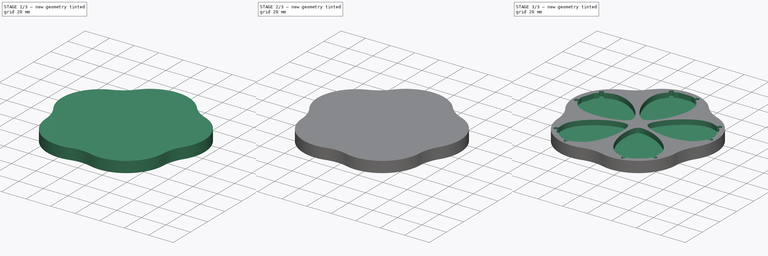
[diagram: build sequence overview — one tinted view per stage of 3, left to right]
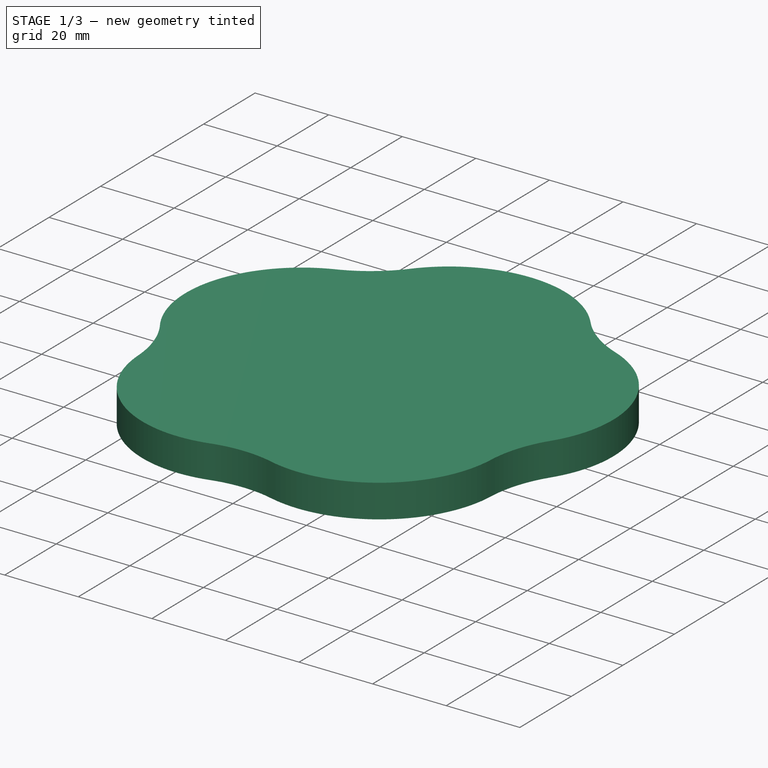
[diagram: stage 1 of 3 — iso view after this stage's code; geometry added in this stage tinted green]
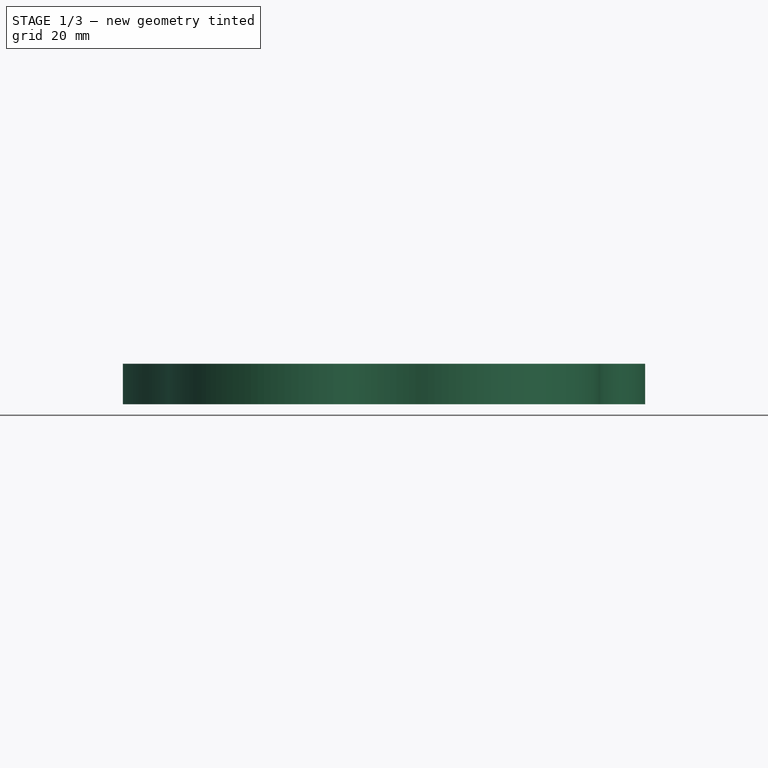
[diagram: stage 1 of 3 — front view after this stage's code; geometry added in this stage tinted green]
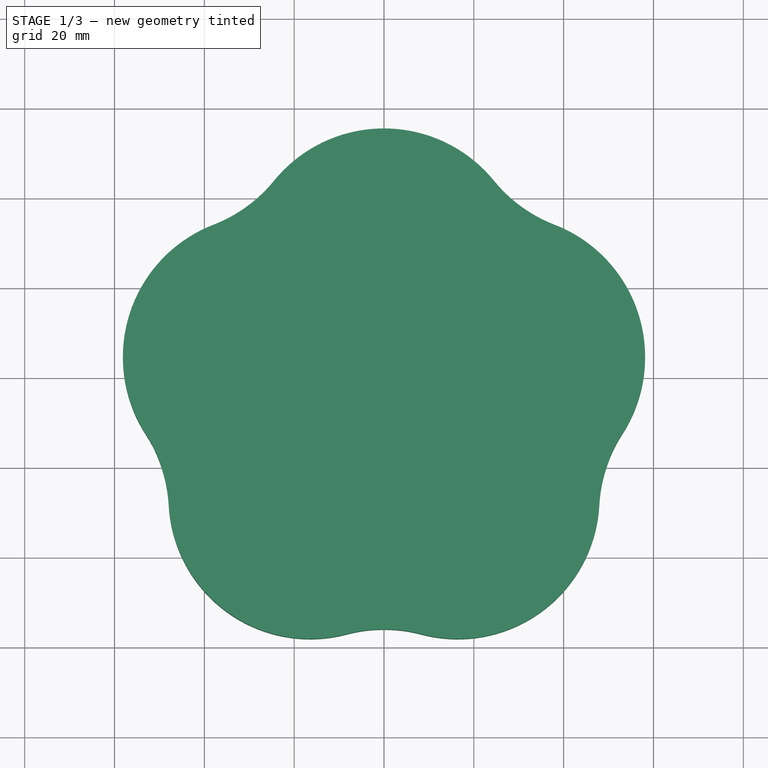
[diagram: stage 1 of 3 — top view after this stage's code; geometry added in this stage tinted green]
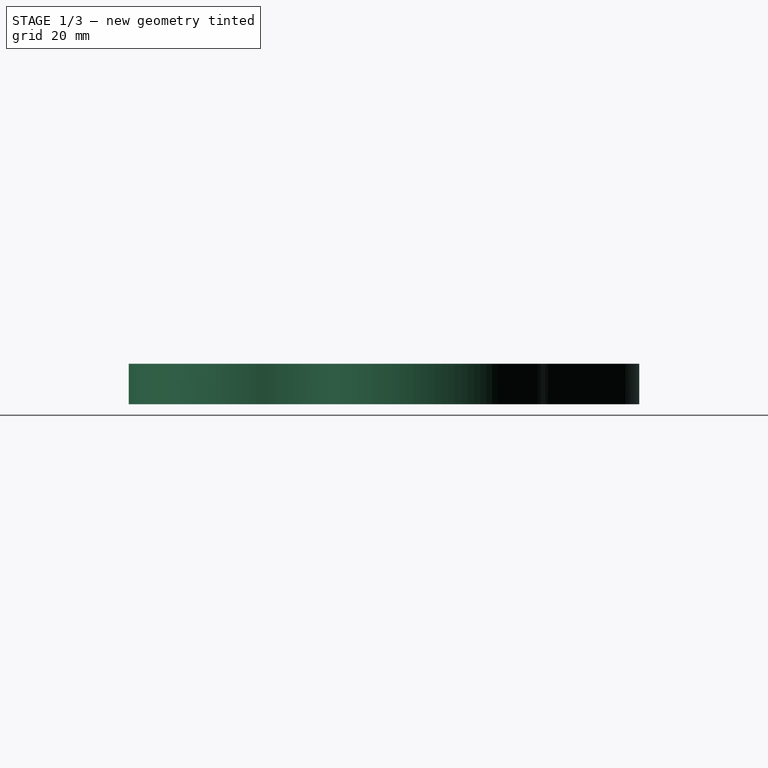
[diagram: stage 1 of 3 — right view after this stage's code; geometry added in this stage tinted green]
FCSTD DOCUMENT  (FreeCAD 0.19R24267 (Git))
Label: chalk ink trays
License: All rights reserved
LicenseURL: http://en.wikipedia.org/wiki/All_rights_reserved
objects: Sketcher::SketchObject×3, PartDesign::PolarPattern×3, PartDesign::Pocket×2, Image::ImagePlane×1, PartDesign::Pad×1, PartDesign::Line×1, PartDesign::Body×1
note: 14 computed .brp shape members not serialized (recipe doc carries the construction recipe); baked Part::Feature solids carry a one-line shape summary decoded from their .brp

FEATURE [Image::ImagePlane] ImagePlane
  Placement = pos=(-6.5,25.7,-0.1) rot=(0,0,1;-0.012217rad)
  XSize = 64.2456
  YSize = 85.6312
FEATURE [Sketcher::SketchObject] Sketch
  AttachmentOffset = pos=(0,-4,0) rot=(0,0,1;0rad)
  FullyConstrained = false
  MapMode = 5
  Placement = pos=(0,-4,0) rot=(0,0,1;0rad)
  Support = -> [XY_Plane001]
  expr: Constraints[2] = 360 / 5
  sketch-geometry (8):
    g0: LineSegment StartX=0 StartY=0 StartZ=0 EndX=-43.1866 EndY=59.4412 EndZ=0
    g1: LineSegment StartX=0 StartY=0 StartZ=0 EndX=43.1866 EndY=59.4412 EndZ=0
    g2: ArcOfCircle CenterX=0 CenterY=27.939 CenterZ=0 NormalX=0 NormalY=0 NormalZ=1 AngleXU=0 Radius=31.5692 StartAngle=0.681581 EndAngle=1.5708
    g3: ArcOfCircle CenterX=49.0319 CenterY=67.7176 CenterZ=0 NormalX=0 NormalY=0 NormalZ=1 AngleXU=0 Radius=31.5692 StartAngle=3.82317 EndAngle=4.08837
    g4: ArcOfCircle CenterX=0 CenterY=27.939 CenterZ=0 NormalX=0 NormalY=0 NormalZ=1 AngleXU=0 Radius=31.5692 StartAngle=1.5708 EndAngle=2.46001
    g5: ArcOfCircle CenterX=-49.0319 CenterY=67.7176 CenterZ=0 NormalX=0 NormalY=0 NormalZ=1 AngleXU=0 Radius=31.5692 StartAngle=5.33641 EndAngle=5.6016
    g6: LineSegment StartX=-30.586 StartY=42.098 StartZ=0 EndX=0 EndY=0 EndZ=0
    g7: LineSegment StartX=0 StartY=0 StartZ=0 EndX=30.586 EndY=42.098 EndZ=0
  constraints (18):
    c: Coincident(g0,g-1)
    c: Coincident(g1,g-1)
    c: Angle(g1,g0) = 1.25664
    c: Symmetric(g1,g0,g-2)
    c: Equal(g2,g3)
    c: PointOnObject(g2,g-2)
    c: Coincident(g5,g4)
    c: Symmetric(g5,g3,g-2)
    c: Symmetric(g4,g2,g-2)
    c: Equal(g5,g3)
    c: Coincident(g6,g5)
    c: Coincident(g6,g-1)
    c: Coincident(g7,g6)
    c: Coincident(g7,g3)
    c: PointOnObject(g2,g-2)
    c: Tangent(g4,g2) = -1.5708
    c: Tangent(g2,g3) = 1.5708
    c: PointOnObject(g3,g1)
FEATURE [PartDesign::Pad] Pad
  Direction = (1,1,1)
  Length = 9
  Length2 = 100
  Profile = -> Sketch
  Type = 0
FEATURE [PartDesign::PolarPattern] PolarPattern
  Angle = 360
  Axis = -> Sketch [N_Axis]
  BaseFeature = -> Pad
  Occurrences = 5
  Originals = -> [Pad]
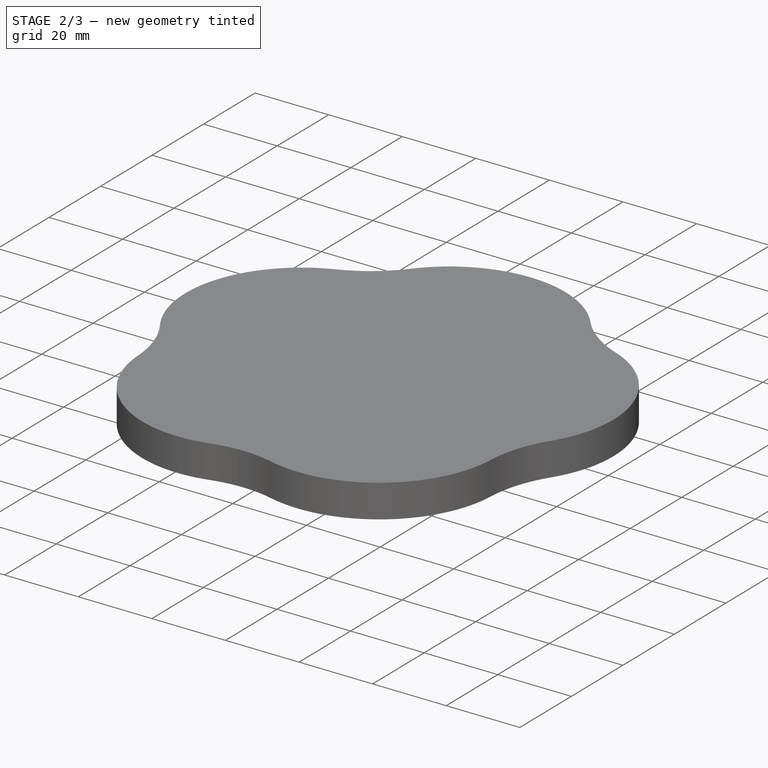
[diagram: stage 2 of 3 — iso view after this stage's code; geometry added in this stage tinted green]
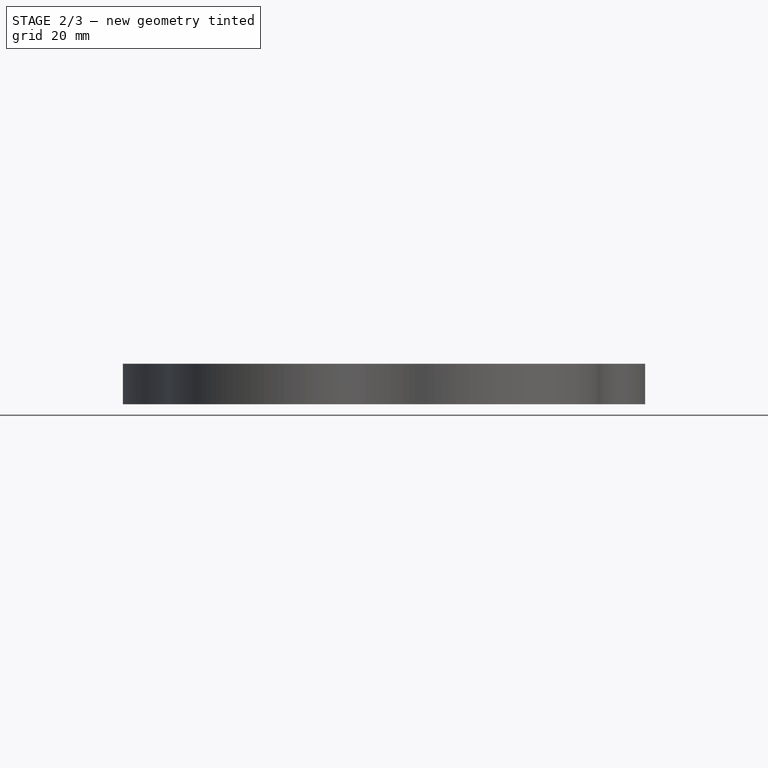
[diagram: stage 2 of 3 — front view after this stage's code; geometry added in this stage tinted green]
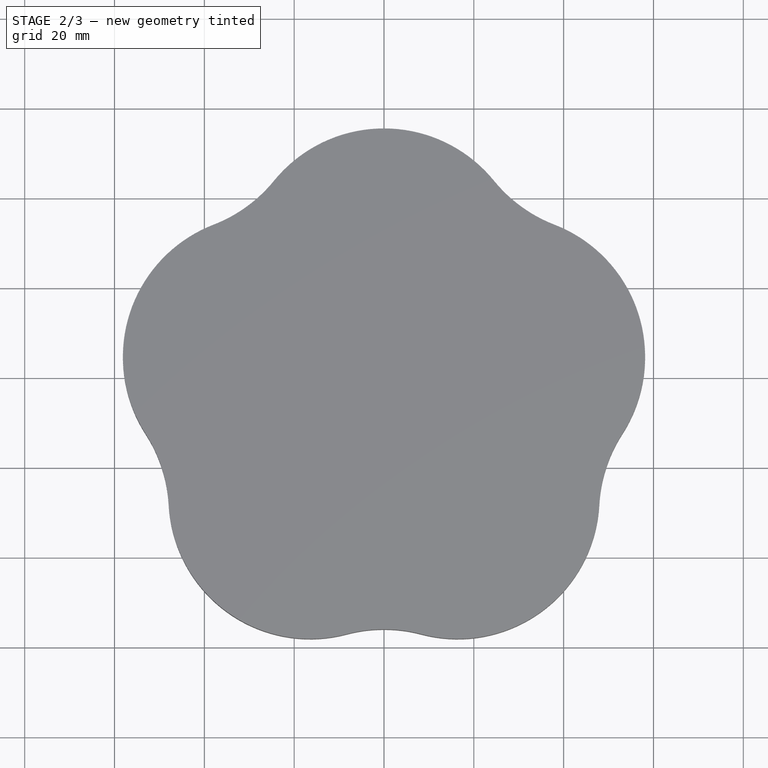
[diagram: stage 2 of 3 — top view after this stage's code; geometry added in this stage tinted green]
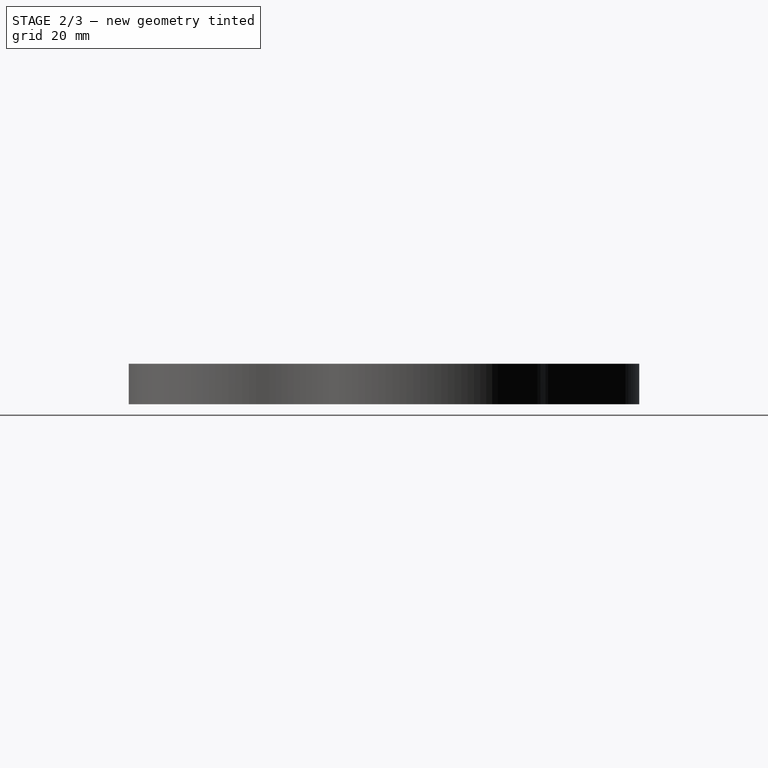
[diagram: stage 2 of 3 — right view after this stage's code; geometry added in this stage tinted green]
FEATURE [Sketcher::SketchObject] Sketch003
  AttachmentOffset = pos=(0,3,0) rot=(0,0,1;0rad)
  FullyConstrained = false
  MapMode = 5
  Placement = pos=(0,3,0) rot=(0,0,1;0rad)
  Support = -> [XY_Plane001]
  sketch-geometry (25):
    g0: LineSegment StartX=-5 StartY=48.5 StartZ=0 EndX=5 EndY=48.5 EndZ=0
    g1: ArcOfCircle CenterX=0 CenterY=33.3996 CenterZ=0 NormalX=0 NormalY=0 NormalZ=1 AngleXU=0 Radius=15.9067 StartAngle=0.55291 EndAngle=1.25104
    g2: ArcOfCircle CenterX=0 CenterY=33.3996 CenterZ=0 NormalX=0 NormalY=0 NormalZ=1 AngleXU=0 Radius=15.9067 StartAngle=1.89055 EndAngle=2.58868
    g3-g7: Circle x5 (B-spline internal-alignment scaffolding for g8; pole/knot coordinates omitted)
    g8: BSplineCurve PolesCount=5 KnotsCount=3 Degree=3 IsPeriodic=0
    g9: GeomPoint X=0 Y=0 Z=0
    g10: GeomPoint X=13.4646 Y=15.4794 Z=0
    g11: GeomPoint X=13.5366 Y=41.7532 Z=0
    g12-g16: Circle x5 (B-spline internal-alignment scaffolding for g17; pole/knot coordinates omitted)
    g17: BSplineCurve PolesCount=5 KnotsCount=3 Degree=3 IsPeriodic=0
    g18: GeomPoint X=0 Y=0 Z=0
    g19: ArcOfCircle CenterX=0 CenterY=33.3996 CenterZ=0 NormalX=0 NormalY=0 NormalZ=1 AngleXU=0 Radius=15.9067 StartAngle=2.31798 EndAngle=2.58868
    g20: ArcOfCircle CenterX=-0.0271516 CenterY=33.4576 CenterZ=0 NormalX=0 NormalY=0 NormalZ=1 AngleXU=0 Radius=15.8431 StartAngle=1.89008 EndAngle=2.12674
    g21: ArcOfCircle CenterX=0 CenterY=33.3996 CenterZ=0 NormalX=0 NormalY=0 NormalZ=1 AngleXU=0 Radius=15.9067 StartAngle=1.01533 EndAngle=1.25104
    g22: ArcOfCircle CenterX=-0.181917 CenterY=33.25 CenterZ=0 NormalX=0 NormalY=0 NormalZ=1 AngleXU=0 Radius=16.1401 StartAngle=0.554879 EndAngle=0.821642
    g23: ArcOfCircle CenterX=0 CenterY=33.3996 CenterZ=0 NormalX=0 NormalY=0 NormalZ=1 AngleXU=0 Radius=15.9067 StartAngle=0.823611 EndAngle=1.01533
    g24: ArcOfCircle CenterX=0 CenterY=33.3996 CenterZ=0 NormalX=0 NormalY=0 NormalZ=1 AngleXU=0 Radius=15.9067 StartAngle=2.12627 EndAngle=2.31798
  constraints (42):
    c: Symmetric(g0,g0,g-2)
    c: Coincident(g1,g0)
    c: DistanceX(g0) = -5
    c: PointOnObject(g1,g-2)
    c: Angle(g1) = 0.698132
    c: Coincident(g2,g1)
    c: Coincident(g2,g0)
    c: Angle(g2) = 0.698132
    c: Coincident(g8,g-1)
    c: Weight(g3) = 1
    c: Equal(g3, g4-g7) x4
    c: Coincident(g8,g1)
    c: InternalAlignment(g3-g7 -> g8) x5
    c: InternalAlignment(g9,g8)
    c: InternalAlignment(g10,g8)
    c: InternalAlignment(g11,g8)
    c: Horizontal(g4,g8)
    c: Coincident(g17,g8)
    c: Weight(g12) = 1
    c: Equal(g12, g13-g16) x4
    c: Coincident(g17,g2)
    c: InternalAlignment(g12-g16 -> g17) x5
    c: InternalAlignment(g18,g17)
    c: DistanceX(g4) = 3.33498
    c: Symmetric(g6,g15,g-2)
    c: Symmetric(g13,g4,g-2)
    c: Coincident(g23,g21)
    c: Coincident(g23,g21)
    c: Coincident(g23,g22)
    c: Vertical(g21,g19)
    c: Symmetric(g19,g22,g-2)
    c: Symmetric(g20,g21,g-2)
    c: Angle(g19) = 0.270701
    c: Coincident(g24,g19)
    c: Coincident(g24,g20)
    c: Coincident(g24,g19)
    c: Angle(g20) = 0.236667
    c: Coincident(g8,g22)
    c: Coincident(g0,g21)
    c: DistanceY(g0) = 48.5
    c: Coincident(g0,g20)
    c: Coincident(g19,g17)
FEATURE [PartDesign::Pocket] Pocket
  BaseFeature = -> PolarPattern
  Length = 4
  Length2 = 100
  Profile = -> Sketch003
  Reversed = true
  Type = 0
FEATURE [PartDesign::Line] DatumLine
  AttacherType = Attacher::AttachEngineLine
  Length = 20
  Placement = pos=(0,-4,0) rot=(0,0,1;0rad)
  ResizeMode = 0
FEATURE [PartDesign::PolarPattern] PolarPattern001
  Angle = 360
  Axis = -> DatumLine
  BaseFeature = -> Pocket
  Occurrences = 5
  Originals = -> [Pocket]
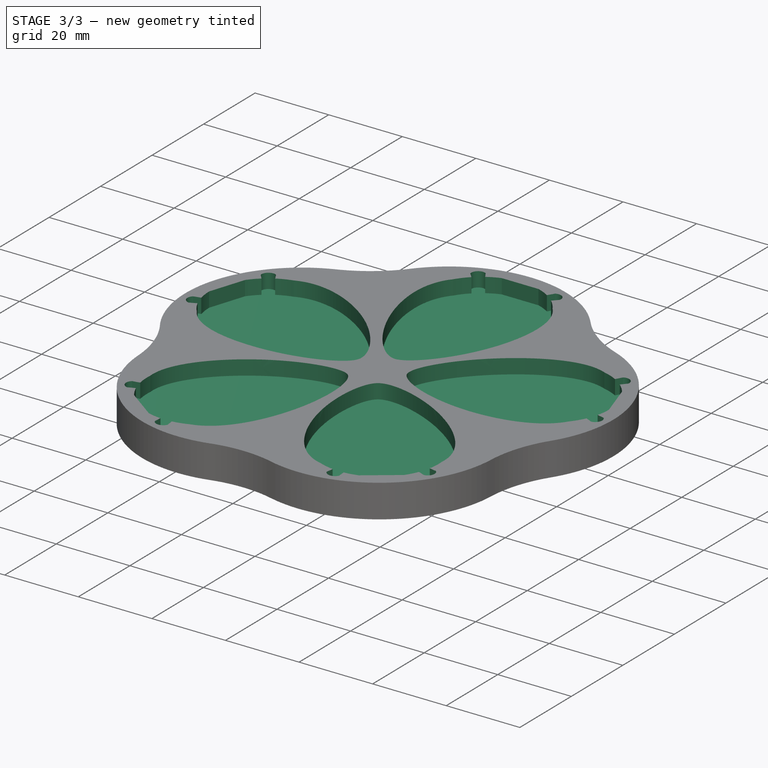
[diagram: stage 3 of 3 — iso view after this stage's code; geometry added in this stage tinted green]
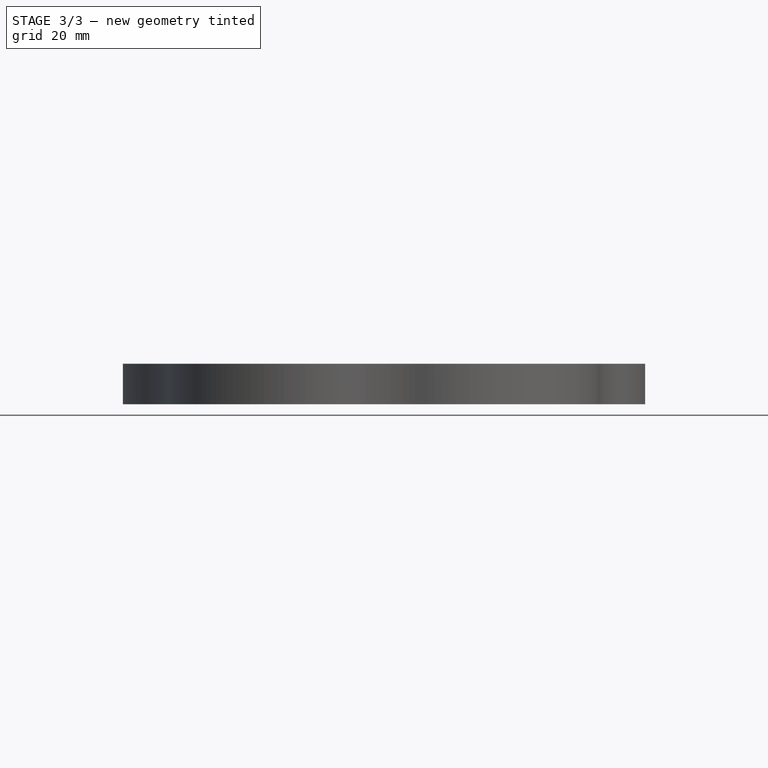
[diagram: stage 3 of 3 — front view after this stage's code; geometry added in this stage tinted green]
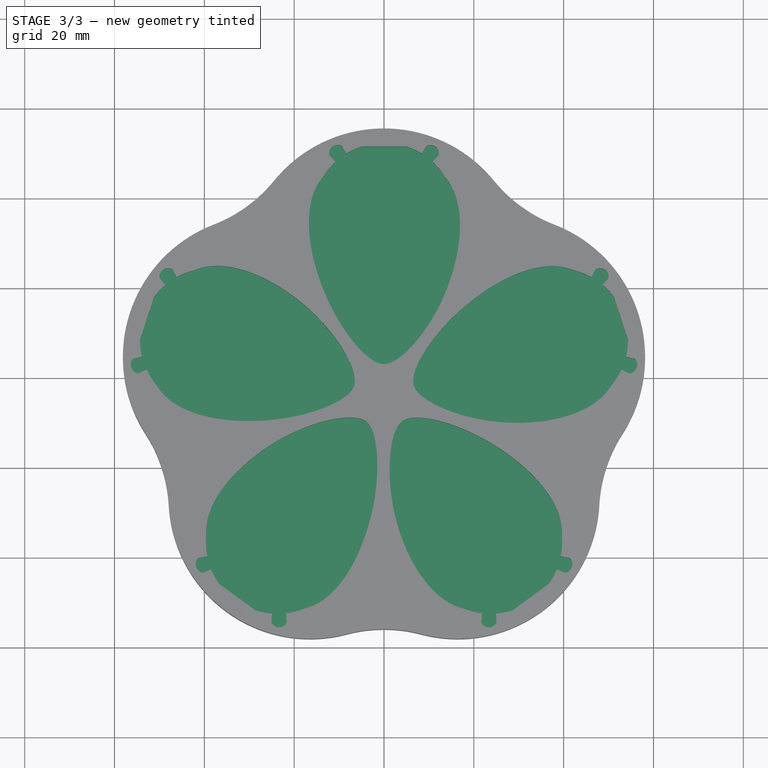
[diagram: stage 3 of 3 — top view after this stage's code; geometry added in this stage tinted green]
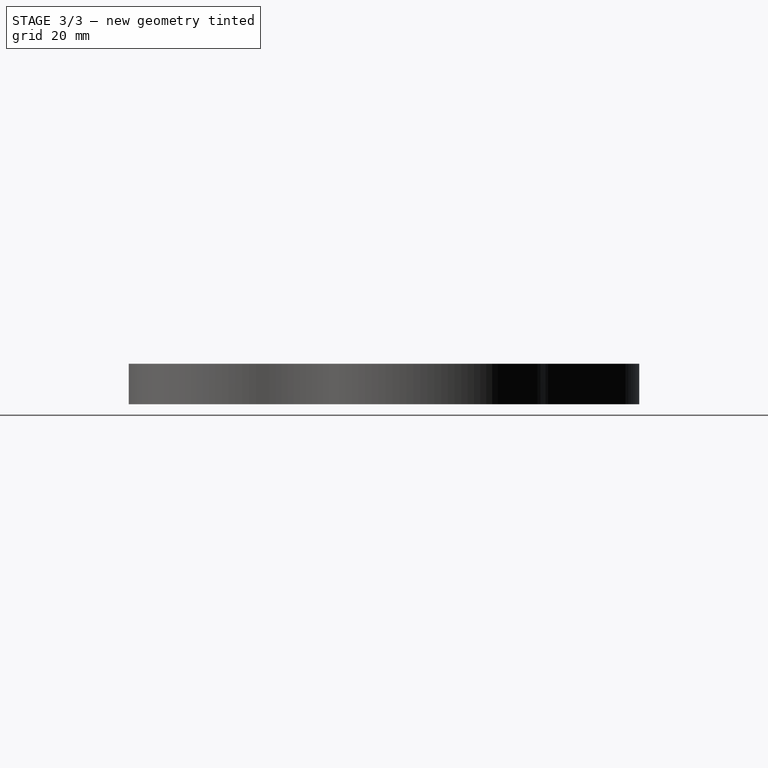
[diagram: stage 3 of 3 — right view after this stage's code; geometry added in this stage tinted green]
FEATURE [Sketcher::SketchObject] Sketch004
  AttachmentOffset = pos=(0,3,9) rot=(0,0,1;0rad)
  FullyConstrained = false
  MapMode = 5
  Placement = pos=(0,3,9) rot=(0,0,1;0rad)
  Support = -> [XY_Plane001]
  sketch-geometry (29):
    g0: LineSegment StartX=-5 StartY=48.5 StartZ=0 EndX=5 EndY=48.5 EndZ=0
    g1: ArcOfCircle CenterX=0 CenterY=33.3996 CenterZ=0 NormalX=0 NormalY=0 NormalZ=1 AngleXU=0 Radius=15.9066 StartAngle=0.552909 EndAngle=1.25104
    g2: ArcOfCircle CenterX=0 CenterY=33.3996 CenterZ=0 NormalX=0 NormalY=0 NormalZ=1 AngleXU=0 Radius=15.9066 StartAngle=1.89055 EndAngle=2.58868
    g3-g7: Circle x5 (B-spline internal-alignment scaffolding for g8; pole/knot coordinates omitted)
    g8: BSplineCurve PolesCount=5 KnotsCount=3 Degree=3 IsPeriodic=0
    g9: GeomPoint X=0 Y=0 Z=0
    g10: GeomPoint X=13.4646 Y=15.4794 Z=0
    g11: GeomPoint X=13.5365 Y=41.7532 Z=0
    g12-g16: Circle x5 (B-spline internal-alignment scaffolding for g17; pole/knot coordinates omitted)
    g17: BSplineCurve PolesCount=5 KnotsCount=3 Degree=3 IsPeriodic=0
    g18: GeomPoint X=0 Y=0 Z=0
    g19: ArcOfCircle CenterX=-2.56702e-05 CenterY=33.3997 CenterZ=0 NormalX=0 NormalY=0 NormalZ=1 AngleXU=0 Radius=15.9066 StartAngle=2.31799 EndAngle=2.58869
    g20: ArcOfCircle CenterX=-0.027151 CenterY=33.4576 CenterZ=0 NormalX=0 NormalY=0 NormalZ=1 AngleXU=0 Radius=15.8431 StartAngle=1.89008 EndAngle=2.12674
    g21: ArcOfCircle CenterX=-2.56702e-05 CenterY=33.3995 CenterZ=0 NormalX=0 NormalY=0 NormalZ=1 AngleXU=0 Radius=15.9067 StartAngle=1.01533 EndAngle=1.25104
    g22: ArcOfCircle CenterX=-0.181917 CenterY=33.2501 CenterZ=0 NormalX=0 NormalY=0 NormalZ=1 AngleXU=0 Radius=16.14 StartAngle=0.554876 EndAngle=0.821637
    g23: LineSegment StartX=8.38827 StartY=46.9147 StartZ=0 EndX=9.44296 EndY=48.614 EndZ=0
    g24: LineSegment StartX=10.8098 StartY=45.0688 StartZ=0 EndX=12.169 EndY=46.536 EndZ=0
    g25: ArcOfCircle CenterX=10.3045 CenterY=46.9172 CenterZ=0 NormalX=0 NormalY=0 NormalZ=1 AngleXU=0 Radius=1.90305 StartAngle=6.08152 EndAngle=8.32378
    g26: LineSegment StartX=-8.38827 StartY=46.9147 StartZ=0 EndX=-9.44296 EndY=48.614 EndZ=0
    g27: LineSegment StartX=-10.8098 StartY=45.0688 StartZ=0 EndX=-12.169 EndY=46.536 EndZ=0
    g28: ArcOfCircle CenterX=-10.3045 CenterY=46.9172 CenterZ=0 NormalX=0 NormalY=0 NormalZ=1 AngleXU=0 Radius=1.90305 StartAngle=1.101 EndAngle=3.34325
  constraints (57):
    c: Symmetric(g0,g0,g-2)
    c: Coincident(g1,g0)
    c: DistanceX(g0) = -5
    c: PointOnObject(g1,g-2)
    c: Angle(g1) = 0.698132
    c: Coincident(g2,g1)
    c: Coincident(g2,g0)
    c: Angle(g2) = 0.698132
    c: Coincident(g8,g-1)
    c: Weight(g3) = 1
    c: Equal(g3, g4-g7) x4
    c: Coincident(g8,g1)
    c: InternalAlignment(g3-g7 -> g8) x5
    c: InternalAlignment(g9,g8)
    c: InternalAlignment(g10,g8)
    c: InternalAlignment(g11,g8)
    c: Horizontal(g4,g8)
    c: Coincident(g17,g8)
    c: Weight(g12) = 1
    c: Equal(g12, g13-g16) x4
    c: Coincident(g17,g2)
    c: InternalAlignment(g12-g16 -> g17) x5
    c: InternalAlignment(g18,g17)
    c: DistanceX(g4) = 3.33498
    c: Symmetric(g6,g15,g-2)
    c: Symmetric(g13,g4,g-2)
    c: Vertical(g21,g19)
    c: Symmetric(g19,g22,g-2)
    c: Symmetric(g20,g21,g-2)
    c: Angle(g19) = 0.270701
    c: Angle(g20) = 0.236667
    c: Coincident(g8,g22)
    c: Coincident(g0,g21)
    c: DistanceY(g0) = 48.5
    c: Coincident(g0,g20)
    c: Coincident(g19,g17)
    c: DistanceX(g21) = 8.38827
    c: DistanceY(g21) = 46.9147
    c: DistanceX(g22) = 10.8098
    c: DistanceY(g22) = 45.0688
    c: Coincident(g23,g21)
    c: Distance(g23) = 2
    c: Coincident(g24,g22)
    c: Equal(g23,g24)
    c: Perpendicular(g1,g23)
    c: Perpendicular(g1,g24)
    c: Coincident(g25,g23)
    c: Coincident(g25,g24)
    c: Coincident(g26,g20)
    c: Coincident(g27,g19)
    c: Equal(g27,g26)
    c: Equal(g26,g23)
    c: Perpendicular(g2,g26)
    c: Coincident(g28,g26)
    c: Coincident(g28,g27)
    c: Equal(g28,g25)
    c: Perpendicular(g2,g27)
FEATURE [PartDesign::Pocket] Pocket001
  BaseFeature = -> PolarPattern001
  Length = 4
  Length2 = 100
  Profile = -> Sketch004
  Type = 0
FEATURE [PartDesign::PolarPattern] PolarPattern002
  Angle = 360
  Axis = -> DatumLine
  BaseFeature = -> Pocket001
  Occurrences = 5
  Originals = -> [Pocket001]
FEATURE [PartDesign::Body] Body001
  Group = -> [Sketch,Pad,PolarPattern,Sketch003,Pocket,DatumLine,PolarPattern001,Sketch004,Pocket001,PolarPattern002]
  Origin = -> Origin001
  Placement = pos=(0,4,0) rot=(0,0,1;0rad)
  Tip = -> PolarPattern002
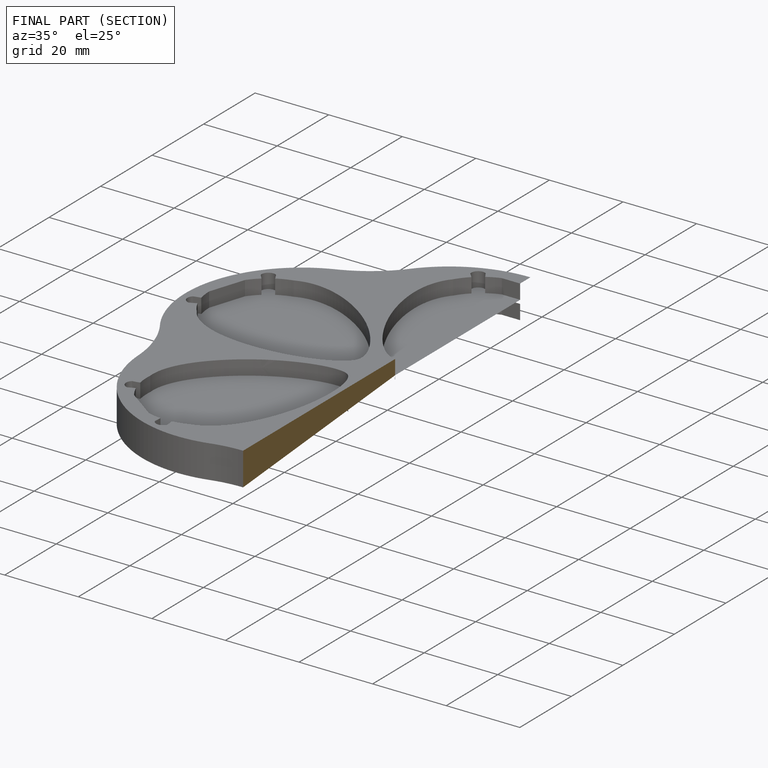
[diagram: finished part — half-section view (interior)]
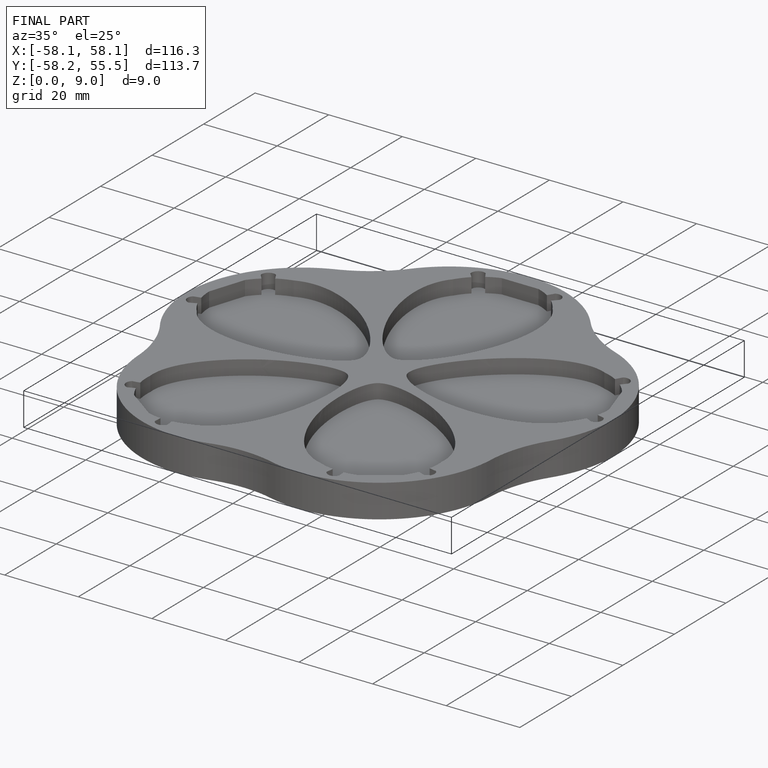
[diagram: finished part — iso view with bounding-box wireframe]
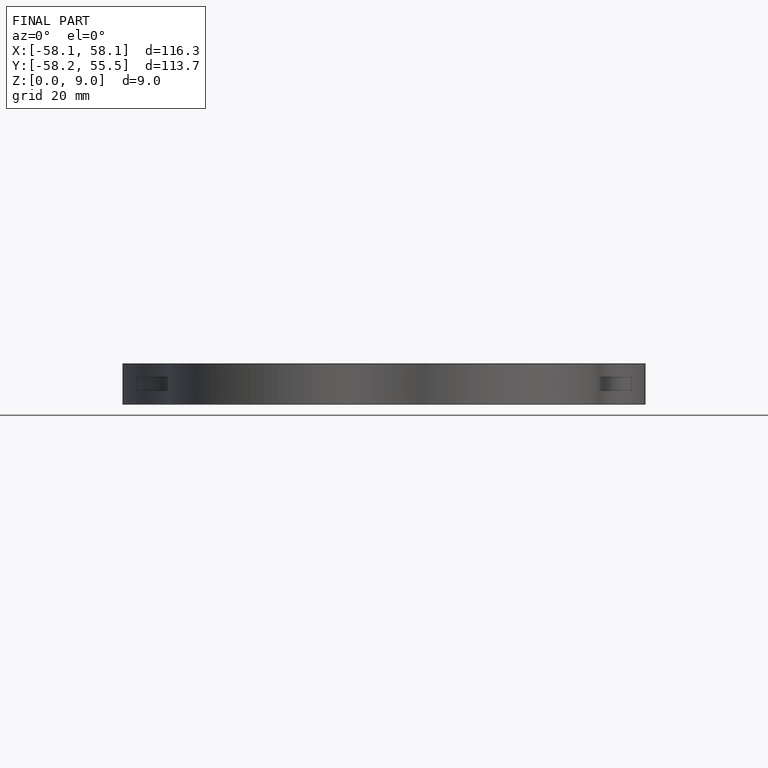
[diagram: finished part — front view with bounding-box wireframe]
